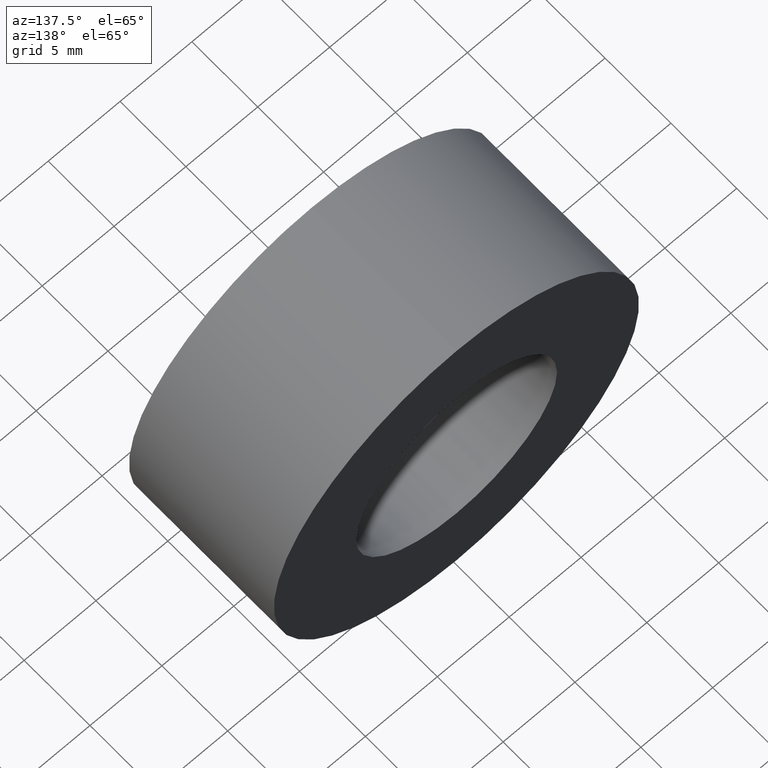
[diagram: clean part render]
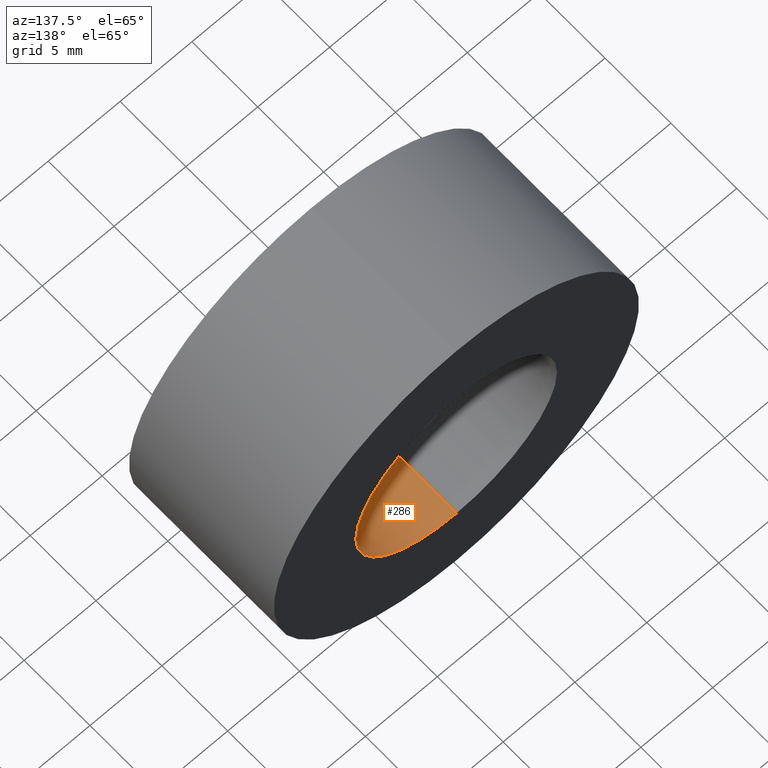
[diagram: same view with one face highlighted and labeled with its STEP entity id]
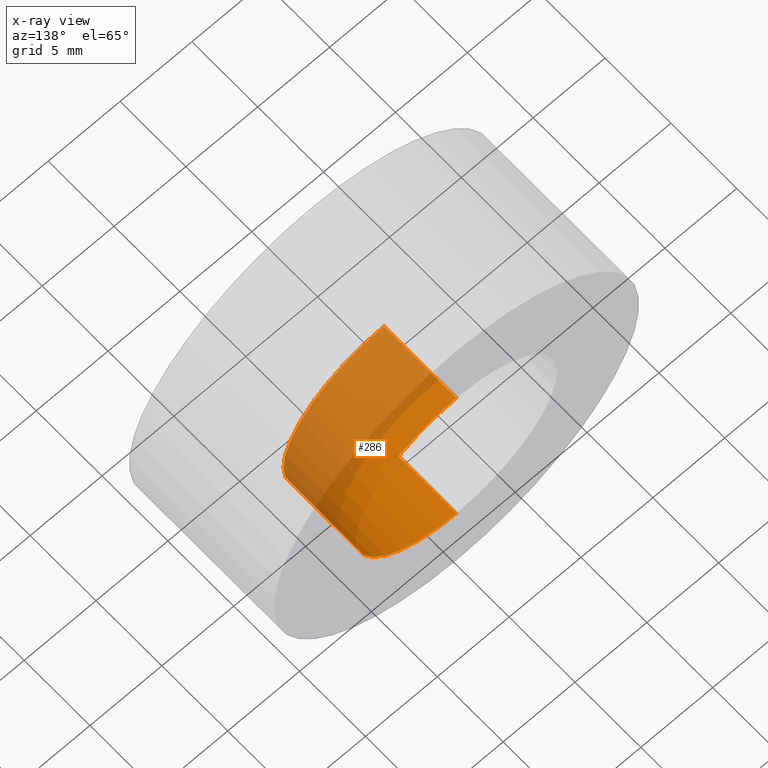
[diagram: x-ray of the same camera — body ghosted, the highlighted face saturated]
A machine part, auxiliary view. The second image highlights one B-rep face of the part: STEP entity #286.
The next image is the same camera in x-ray: the body ghosted, the highlighted face saturated — about 57% of this face is hidden behind the body in this view.
In plain terms, the highlighted cylindrical surface (partial cylindrical patch) has radius 7 mm, axis along (-0, 1, -0).
Its self-contained STEP definition (entity closure, byte-faithful):
#18 = AXIS2_PLACEMENT_3D ( 'NONE', #87, #167, #53 ) ;
#30 = DIRECTION ( 'NONE',  ( -0.0000000000000000000, 1.000000000000000000, -0.0000000000000000000 ) ) ;
#34 = ORIENTED_EDGE ( 'NONE', *, *, #102, .T. ) ;
#40 = VERTEX_POINT ( 'NONE', #328 ) ;
#49 = ORIENTED_EDGE ( 'NONE', *, *, #217, .T. ) ;
#53 = DIRECTION ( 'NONE',  ( 0.0000000000000000000, 0.0000000000000000000, 1.000000000000000000 ) ) ;
#69 = VERTEX_POINT ( 'NONE', #119 ) ;
#83 = EDGE_LOOP ( 'NONE', ( #349, #152, #34, #49 ) ) ;
#87 = CARTESIAN_POINT ( 'NONE',  ( 0.0000000000000000000, 10.99999999999999600, 0.0000000000000000000 ) ) ;
#102 = EDGE_CURVE ( 'NONE', #40, #69, #151, .T. ) ;
#113 = CARTESIAN_POINT ( 'NONE',  ( 8.572527594031482100E-016, 10.99999999999999600, -7.000000000000008000 ) ) ;
#117 = VECTOR ( 'NONE', #416, 1000.000000000000000 ) ;
#119 = CARTESIAN_POINT ( 'NONE',  ( 0.0000000000000000000, 10.99999999999999600, 7.000000000000007100 ) ) ;
#133 = DIRECTION ( 'NONE',  ( -0.0000000000000000000, 1.000000000000000000, -0.0000000000000000000 ) ) ;
#145 = CIRCLE ( 'NONE', #368, 7.000000000000006200 ) ;
#148 = CARTESIAN_POINT ( 'NONE',  ( 0.0000000000000000000, 60.02082041425541100, 7.000000000000006200 ) ) ;
#150 = CYLINDRICAL_SURFACE ( 'NONE', #166, 7.000000000000006200 ) ;
#151 = LINE ( 'NONE', #148, #117 ) ;
#152 = ORIENTED_EDGE ( 'NONE', *, *, #197, .F. ) ;
#163 = CIRCLE ( 'NONE', #18, 7.000000000000007100 ) ;
#166 = AXIS2_PLACEMENT_3D ( 'NONE', #362, #250, #329 ) ;
#167 = DIRECTION ( 'NONE',  ( -0.0000000000000000000, 1.000000000000000000, -0.0000000000000000000 ) ) ;
#197 = EDGE_CURVE ( 'NONE', #40, #219, #145, .T. ) ;
#217 = EDGE_CURVE ( 'NONE', #69, #407, #163, .T. ) ;
#219 = VERTEX_POINT ( 'NONE', #369 ) ;
#223 = CARTESIAN_POINT ( 'NONE',  ( 0.0000000000000000000, 5.499999999999998200, 0.0000000000000000000 ) ) ;
#224 = CARTESIAN_POINT ( 'NONE',  ( 8.572527594031480100E-016, 60.02082041425541100, -7.000000000000006200 ) ) ;
#250 = DIRECTION ( 'NONE',  ( -0.0000000000000000000, 1.000000000000000000, -0.0000000000000000000 ) ) ;
#276 = LINE ( 'NONE', #224, #284 ) ;
#284 = VECTOR ( 'NONE', #30, 1000.000000000000000 ) ;
#286 = ADVANCED_FACE ( 'NONE', ( #322 ), #150, .F. ) ;
#322 = FACE_OUTER_BOUND ( 'NONE', #83, .T. ) ;
#328 = CARTESIAN_POINT ( 'NONE',  ( 0.0000000000000000000, 5.499999999999998200, 7.000000000000006200 ) ) ;
#329 = DIRECTION ( 'NONE',  ( 0.0000000000000000000, 0.0000000000000000000, 1.000000000000000000 ) ) ;
#333 = DIRECTION ( 'NONE',  ( 0.0000000000000000000, 0.0000000000000000000, 1.000000000000000000 ) ) ;
#349 = ORIENTED_EDGE ( 'NONE', *, *, #402, .F. ) ;
#362 = CARTESIAN_POINT ( 'NONE',  ( 0.0000000000000000000, 60.02082041425541100, 0.0000000000000000000 ) ) ;
#368 = AXIS2_PLACEMENT_3D ( 'NONE', #223, #133, #333 ) ;
#369 = CARTESIAN_POINT ( 'NONE',  ( 8.572527594031480100E-016, 5.499999999999998200, -7.000000000000006200 ) ) ;
#402 = EDGE_CURVE ( 'NONE', #219, #407, #276, .T. ) ;
#407 = VERTEX_POINT ( 'NONE', #113 ) ;
#416 = DIRECTION ( 'NONE',  ( -0.0000000000000000000, 1.000000000000000000, -0.0000000000000000000 ) ) ;